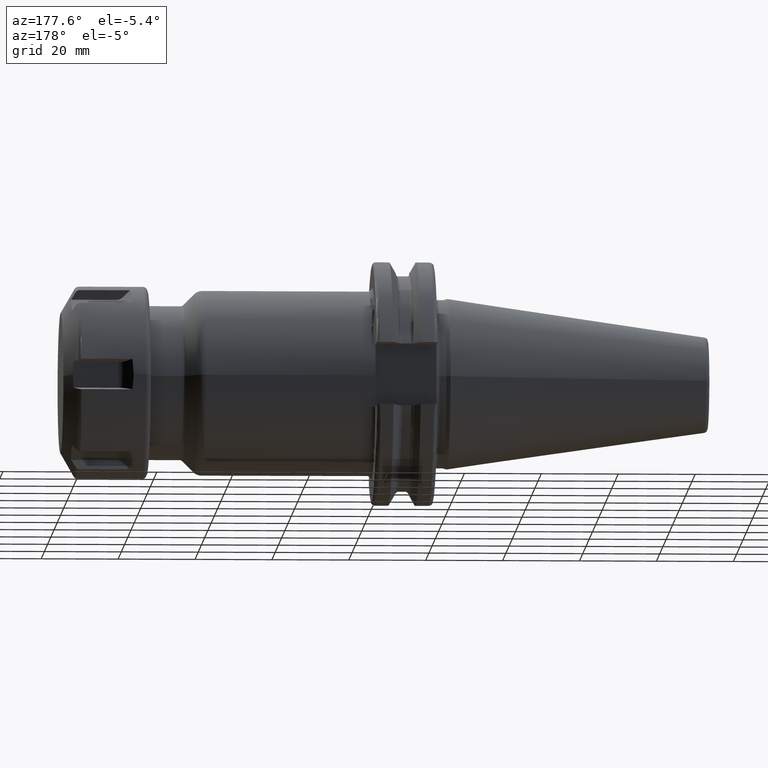
[diagram: clean part render]
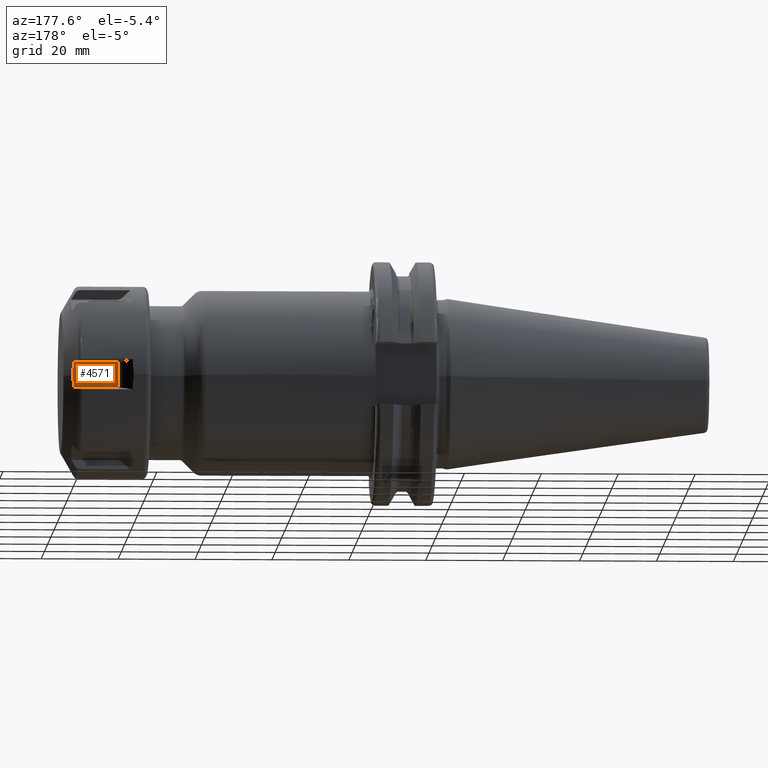
[diagram: same view with one face highlighted and labeled with its STEP entity id]
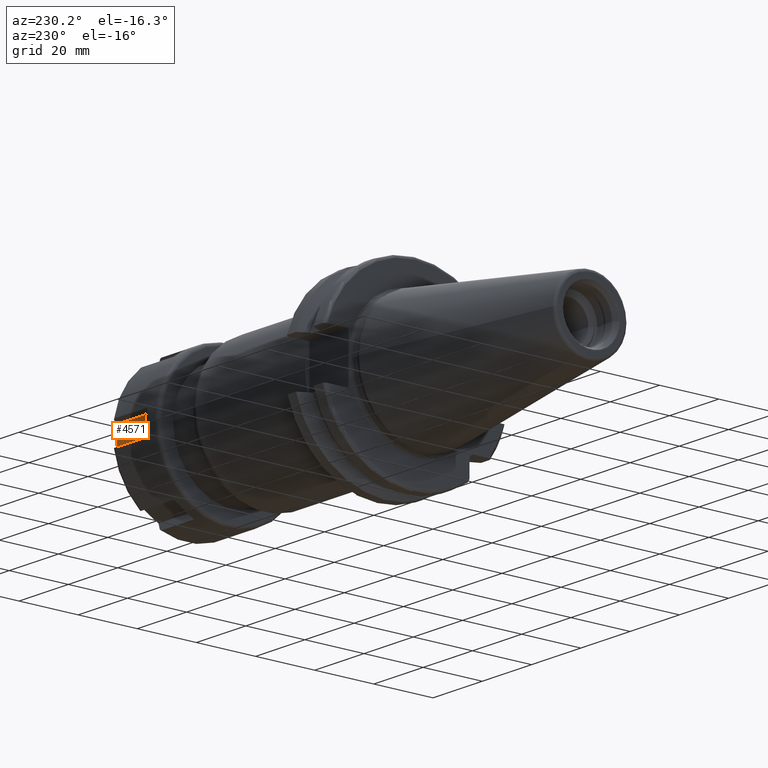
[diagram: same view with one face highlighted and labeled with its STEP entity id]
A machine part, auxiliary view. The second image highlights one B-rep face of the part: STEP entity #4571.
A second angle (auxiliary view) of the same face is appended — the face is thin or edge-on in the first view.
In plain terms, the highlighted planar face has unit normal (0, -1, 0).
Its self-contained STEP definition (entity closure, byte-faithful):
#3315=CARTESIAN_POINT('',(2.007435737753E1,2.22E1,-3.35E0));
#3316=CARTESIAN_POINT('',(2.010642291935E1,2.22E1,-2.977782663007E0));
#3317=CARTESIAN_POINT('',(2.016009585532E1,2.22E1,-2.233360618265E0));
#3318=CARTESIAN_POINT('',(2.020864465134E1,2.22E1,-1.116836975823E0));
#3319=CARTESIAN_POINT('',(2.021946643670E1,2.22E1,-3.722962341462E-1));
#3320=CARTESIAN_POINT('',(2.021946643670E1,2.22E1,0.E0));
#3661=CARTESIAN_POINT('',(2.007435737753E1,2.22E1,3.35E0));
#3667=CARTESIAN_POINT('',(2.021946643670E1,2.22E1,0.E0));
#3668=CARTESIAN_POINT('',(2.021946643670E1,2.22E1,3.723412104007E-1));
#3669=CARTESIAN_POINT('',(2.020864224929E1,2.22E1,1.116942255784E0));
#3670=CARTESIAN_POINT('',(2.016008769471E1,2.22E1,2.233495806650E0));
#3671=CARTESIAN_POINT('',(2.010641792581E1,2.22E1,2.977840628173E0));
#3672=CARTESIAN_POINT('',(2.007435737753E1,2.22E1,3.35E0));
#3815=CARTESIAN_POINT('',(8.408376618407E0,2.22E1,-3.35E0));
#3821=DIRECTION('',(-1.E0,0.E0,0.E0));
#3822=VECTOR('',#3821,1.166598075912E1);
#3823=CARTESIAN_POINT('',(2.007435737753E1,2.22E1,-3.35E0));
#3824=LINE('',#3823,#3822);
#3825=DIRECTION('',(0.E0,0.E0,-1.E0));
#3826=VECTOR('',#3825,6.7E0);
#3827=CARTESIAN_POINT('',(8.408376618407E0,2.22E1,3.35E0));
#3828=LINE('',#3827,#3826);
#3829=DIRECTION('',(-1.E0,0.E0,0.E0));
#3830=VECTOR('',#3829,1.166598075912E1);
#3831=CARTESIAN_POINT('',(2.007435737753E1,2.22E1,3.35E0));
#3832=LINE('',#3831,#3830);
#3949=VERTEX_POINT('',#3661);
#3951=VERTEX_POINT('',#3667);
#3952=VERTEX_POINT('',#3315);
#3961=VERTEX_POINT('',#3815);
#3962=CARTESIAN_POINT('',(8.408376618407E0,2.22E1,3.35E0));
#3963=VERTEX_POINT('',#3962);
#4558=CARTESIAN_POINT('',(2.25E1,2.22E1,3.35E0));
#4559=DIRECTION('',(0.E0,-1.E0,0.E0));
#4560=DIRECTION('',(0.E0,0.E0,-1.E0));
#4561=AXIS2_PLACEMENT_3D('',#4558,#4559,#4560);
#4562=PLANE('',#4561);
#4563=ORIENTED_EDGE('',*,*,#4535,.T.);
#4564=ORIENTED_EDGE('',*,*,#4553,.F.);
#4565=ORIENTED_EDGE('',*,*,#4087,.T.);
#4566=ORIENTED_EDGE('',*,*,#4358,.T.);
#4568=ORIENTED_EDGE('',*,*,#4567,.T.);
#4569=EDGE_LOOP('',(#4563,#4564,#4565,#4566,#4568));
#4570=FACE_OUTER_BOUND('',#4569,.F.);
#4571=ADVANCED_FACE('',(#4570),#4562,.F.);
#3321=B_SPLINE_CURVE_WITH_KNOTS('',3,(#3315,#3316,#3317,#3318,#3319,#3320),
.UNSPECIFIED.,.F.,.F.,(4,1,1,4),(0.E0,3.333333333333E-1,6.666666666667E-1,1.E0),
.UNSPECIFIED.);
#3673=B_SPLINE_CURVE_WITH_KNOTS('',3,(#3667,#3668,#3669,#3670,#3671,#3672),
.UNSPECIFIED.,.F.,.F.,(4,1,1,4),(0.E0,3.333333333333E-1,6.666666666667E-1,1.E0),
.UNSPECIFIED.);
#4087=EDGE_CURVE('',#3952,#3951,#3321,.T.);
#4358=EDGE_CURVE('',#3951,#3949,#3673,.T.);
#4535=EDGE_CURVE('',#3963,#3961,#3828,.T.);
#4553=EDGE_CURVE('',#3952,#3961,#3824,.T.);
#4567=EDGE_CURVE('',#3949,#3963,#3832,.T.);